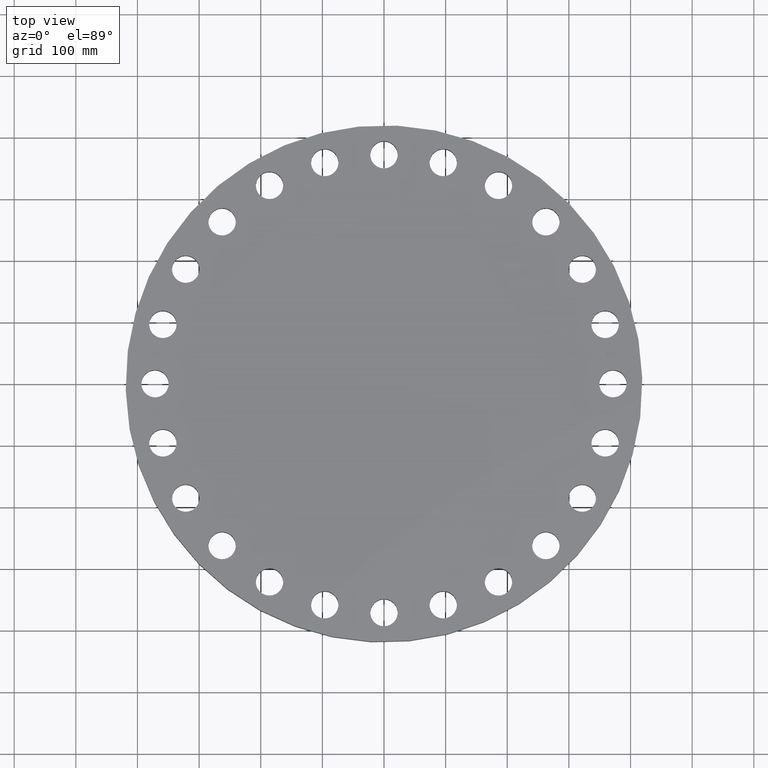
[diagram: clean part render]
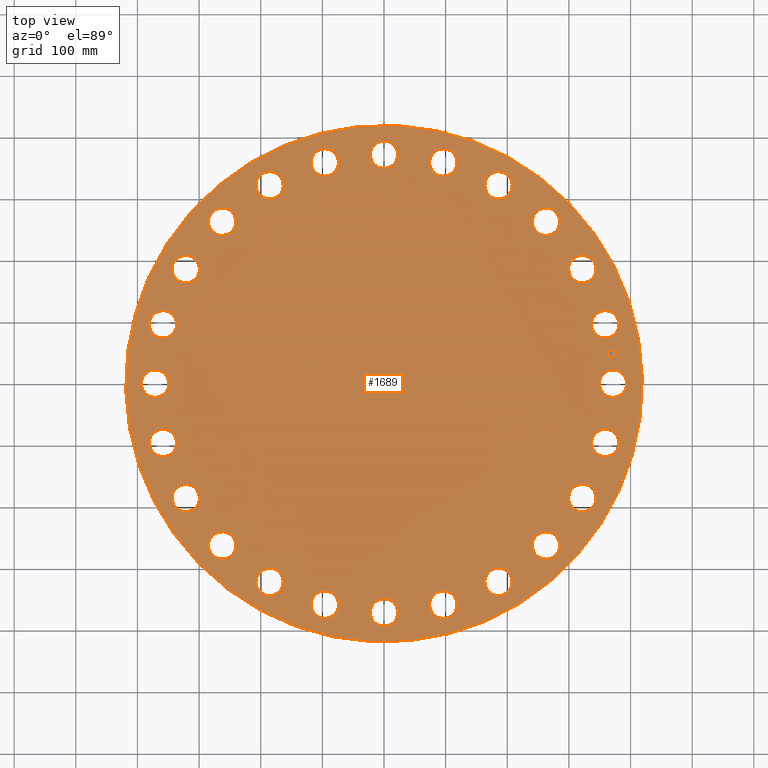
[diagram: same view with one face highlighted and labeled with its STEP entity id]
A machine part, top view. The second image highlights one B-rep face of the part: STEP entity #1689.
In plain terms, the highlighted planar face has unit normal (0, 0, -1).
Its self-contained STEP definition (entity closure, byte-faithful):
#65=AXIS2_PLACEMENT_3D('Circle Axis2P3D',#63,#64,$) ;
#82=AXIS2_PLACEMENT_3D('Circle Axis2P3D',#80,#81,$) ;
#115=AXIS2_PLACEMENT_3D('Circle Axis2P3D',#113,#114,$) ;
#139=AXIS2_PLACEMENT_3D('Circle Axis2P3D',#137,#138,$) ;
#598=AXIS2_PLACEMENT_3D('Circle Axis2P3D',#596,#597,$) ;
#610=AXIS2_PLACEMENT_3D('Circle Axis2P3D',#608,#609,$) ;
#641=AXIS2_PLACEMENT_3D('Circle Axis2P3D',#639,#640,$) ;
#653=AXIS2_PLACEMENT_3D('Circle Axis2P3D',#651,#652,$) ;
#684=AXIS2_PLACEMENT_3D('Circle Axis2P3D',#682,#683,$) ;
#696=AXIS2_PLACEMENT_3D('Circle Axis2P3D',#694,#695,$) ;
#727=AXIS2_PLACEMENT_3D('Circle Axis2P3D',#725,#726,$) ;
#739=AXIS2_PLACEMENT_3D('Circle Axis2P3D',#737,#738,$) ;
#770=AXIS2_PLACEMENT_3D('Circle Axis2P3D',#768,#769,$) ;
#782=AXIS2_PLACEMENT_3D('Circle Axis2P3D',#780,#781,$) ;
#813=AXIS2_PLACEMENT_3D('Circle Axis2P3D',#811,#812,$) ;
#825=AXIS2_PLACEMENT_3D('Circle Axis2P3D',#823,#824,$) ;
#856=AXIS2_PLACEMENT_3D('Circle Axis2P3D',#854,#855,$) ;
#868=AXIS2_PLACEMENT_3D('Circle Axis2P3D',#866,#867,$) ;
#899=AXIS2_PLACEMENT_3D('Circle Axis2P3D',#897,#898,$) ;
#911=AXIS2_PLACEMENT_3D('Circle Axis2P3D',#909,#910,$) ;
#942=AXIS2_PLACEMENT_3D('Circle Axis2P3D',#940,#941,$) ;
#954=AXIS2_PLACEMENT_3D('Circle Axis2P3D',#952,#953,$) ;
#985=AXIS2_PLACEMENT_3D('Circle Axis2P3D',#983,#984,$) ;
#997=AXIS2_PLACEMENT_3D('Circle Axis2P3D',#995,#996,$) ;
#1028=AXIS2_PLACEMENT_3D('Circle Axis2P3D',#1026,#1027,$) ;
#1040=AXIS2_PLACEMENT_3D('Circle Axis2P3D',#1038,#1039,$) ;
#1071=AXIS2_PLACEMENT_3D('Circle Axis2P3D',#1069,#1070,$) ;
#1083=AXIS2_PLACEMENT_3D('Circle Axis2P3D',#1081,#1082,$) ;
#1114=AXIS2_PLACEMENT_3D('Circle Axis2P3D',#1112,#1113,$) ;
#1126=AXIS2_PLACEMENT_3D('Circle Axis2P3D',#1124,#1125,$) ;
#1157=AXIS2_PLACEMENT_3D('Circle Axis2P3D',#1155,#1156,$) ;
#1169=AXIS2_PLACEMENT_3D('Circle Axis2P3D',#1167,#1168,$) ;
#1200=AXIS2_PLACEMENT_3D('Circle Axis2P3D',#1198,#1199,$) ;
#1212=AXIS2_PLACEMENT_3D('Circle Axis2P3D',#1210,#1211,$) ;
#1243=AXIS2_PLACEMENT_3D('Circle Axis2P3D',#1241,#1242,$) ;
#1255=AXIS2_PLACEMENT_3D('Circle Axis2P3D',#1253,#1254,$) ;
#1286=AXIS2_PLACEMENT_3D('Circle Axis2P3D',#1284,#1285,$) ;
#1298=AXIS2_PLACEMENT_3D('Circle Axis2P3D',#1296,#1297,$) ;
#1329=AXIS2_PLACEMENT_3D('Circle Axis2P3D',#1327,#1328,$) ;
#1341=AXIS2_PLACEMENT_3D('Circle Axis2P3D',#1339,#1340,$) ;
#1372=AXIS2_PLACEMENT_3D('Circle Axis2P3D',#1370,#1371,$) ;
#1384=AXIS2_PLACEMENT_3D('Circle Axis2P3D',#1382,#1383,$) ;
#1415=AXIS2_PLACEMENT_3D('Circle Axis2P3D',#1413,#1414,$) ;
#1427=AXIS2_PLACEMENT_3D('Circle Axis2P3D',#1425,#1426,$) ;
#1458=AXIS2_PLACEMENT_3D('Circle Axis2P3D',#1456,#1457,$) ;
#1470=AXIS2_PLACEMENT_3D('Circle Axis2P3D',#1468,#1469,$) ;
#1501=AXIS2_PLACEMENT_3D('Circle Axis2P3D',#1499,#1500,$) ;
#1513=AXIS2_PLACEMENT_3D('Circle Axis2P3D',#1511,#1512,$) ;
#1544=AXIS2_PLACEMENT_3D('Circle Axis2P3D',#1542,#1543,$) ;
#1556=AXIS2_PLACEMENT_3D('Circle Axis2P3D',#1554,#1555,$) ;
#1569=AXIS2_PLACEMENT_3D('Plane Axis2P3D',#1566,#1567,#1568) ;
#1673=AXIS2_PLACEMENT_3D('Circle Axis2P3D',#1671,#1672,$) ;
#1682=AXIS2_PLACEMENT_3D('Circle Axis2P3D',#1680,#1681,$) ;
#46=CARTESIAN_POINT('Vertex',(13.8571152584,0.41949734628,2.88000000001)) ;
#60=CARTESIAN_POINT('Vertex',(15.3928847417,-0.41949734628,2.88000000001)) ;
#63=CARTESIAN_POINT('Axis2P3D Location',(14.6250000001,0.,2.88000000001)) ;
#80=CARTESIAN_POINT('Axis2P3D Location',(14.6250000001,0.,2.88000000001)) ;
#110=CARTESIAN_POINT('Vertex',(7.910521387,14.4801122712,2.88000000001)) ;
#113=CARTESIAN_POINT('Axis2P3D Location',(0.,0.,2.88000000001)) ;
#117=CARTESIAN_POINT('Vertex',(-7.910521387,-14.4801122712,2.88000000001)) ;
#137=CARTESIAN_POINT('Axis2P3D Location',(0.,0.,2.88000000001)) ;
#586=CARTESIAN_POINT('Vertex',(-13.4935194085,3.18128201822,2.88000000001)) ;
#593=CARTESIAN_POINT('Vertex',(-14.7598110105,4.38917505106,2.88000000001)) ;
#596=CARTESIAN_POINT('Axis2P3D Location',(-14.1266652095,3.78522853464,2.88000000001)) ;
#608=CARTESIAN_POINT('Axis2P3D Location',(-14.1266652095,3.78522853464,2.88000000001)) ;
#629=CARTESIAN_POINT('Vertex',(12.2103625101,-6.5652622705,2.88000000001)) ;
#636=CARTESIAN_POINT('Vertex',(13.1208805507,-8.05973772956,2.88000000001)) ;
#639=CARTESIAN_POINT('Axis2P3D Location',(12.6656215304,-7.31250000003,2.88000000001)) ;
#651=CARTESIAN_POINT('Axis2P3D Location',(12.6656215304,-7.31250000003,2.88000000001)) ;
#672=CARTESIAN_POINT('Vertex',(-12.2103625101,6.5652622705,2.88000000001)) ;
#679=CARTESIAN_POINT('Vertex',(-13.1208805507,8.05973772956,2.88000000001)) ;
#682=CARTESIAN_POINT('Axis2P3D Location',(-12.6656215304,7.31250000003,2.88000000001)) ;
#694=CARTESIAN_POINT('Axis2P3D Location',(-12.6656215304,7.31250000003,2.88000000001)) ;
#715=CARTESIAN_POINT('Vertex',(10.0950895851,-9.50183074865,2.88000000001)) ;
#722=CARTESIAN_POINT('Vertex',(10.5877837646,-11.1810426011,2.88000000001)) ;
#725=CARTESIAN_POINT('Axis2P3D Location',(10.3414366749,-10.3414366749,2.88000000001)) ;
#737=CARTESIAN_POINT('Axis2P3D Location',(10.3414366749,-10.3414366749,2.88000000001)) ;
#758=CARTESIAN_POINT('Vertex',(-10.0950895851,9.50183074865,2.88000000001)) ;
#765=CARTESIAN_POINT('Vertex',(-10.5877837646,11.1810426011,2.88000000001)) ;
#768=CARTESIAN_POINT('Axis2P3D Location',(-10.3414366749,10.3414366749,2.88000000001)) ;
#780=CARTESIAN_POINT('Axis2P3D Location',(-10.3414366749,10.3414366749,2.88000000001)) ;
#801=CARTESIAN_POINT('Vertex',(7.2918529879,-11.7908651638,2.88000000001)) ;
#808=CARTESIAN_POINT('Vertex',(7.33314701216,-13.540377897,2.88000000001)) ;
#811=CARTESIAN_POINT('Axis2P3D Location',(7.31250000003,-12.6656215304,2.88000000001)) ;
#823=CARTESIAN_POINT('Axis2P3D Location',(7.31250000003,-12.6656215304,2.88000000001)) ;
#844=CARTESIAN_POINT('Vertex',(-7.2918529879,11.7908651638,2.88000000001)) ;
#851=CARTESIAN_POINT('Vertex',(-7.33314701216,13.540377897,2.88000000001)) ;
#854=CARTESIAN_POINT('Axis2P3D Location',(-7.31250000003,12.6656215304,2.88000000001)) ;
#866=CARTESIAN_POINT('Axis2P3D Location',(-7.31250000003,12.6656215304,2.88000000001)) ;
#887=CARTESIAN_POINT('Vertex',(3.99168865989,-13.2763716034,2.88000000001)) ;
#894=CARTESIAN_POINT('Vertex',(3.57876840939,-14.9769588157,2.88000000001)) ;
#897=CARTESIAN_POINT('Axis2P3D Location',(3.78522853464,-14.1266652095,2.88000000001)) ;
#909=CARTESIAN_POINT('Axis2P3D Location',(3.78522853464,-14.1266652095,2.88000000001)) ;
#930=CARTESIAN_POINT('Vertex',(-3.99168865989,13.2763716034,2.88000000001)) ;
#937=CARTESIAN_POINT('Vertex',(-3.57876840939,14.9769588157,2.88000000001)) ;
#940=CARTESIAN_POINT('Axis2P3D Location',(-3.78522853464,14.1266652095,2.88000000001)) ;
#952=CARTESIAN_POINT('Axis2P3D Location',(-3.78522853464,14.1266652095,2.88000000001)) ;
#973=CARTESIAN_POINT('Vertex',(0.41949734628,-13.8571152584,2.88000000001)) ;
#980=CARTESIAN_POINT('Vertex',(-0.41949734628,-15.3928847417,2.88000000001)) ;
#983=CARTESIAN_POINT('Axis2P3D Location',(-1.34240690453E-015,-14.6250000001,2.88000000001)) ;
#995=CARTESIAN_POINT('Axis2P3D Location',(-1.34240690453E-015,-14.6250000001,2.88000000001)) ;
#1016=CARTESIAN_POINT('Vertex',(-0.41949734628,13.8571152584,2.88000000001)) ;
#1023=CARTESIAN_POINT('Vertex',(0.41949734628,15.3928847417,2.88000000001)) ;
#1026=CARTESIAN_POINT('Axis2P3D Location',(-2.68656891564E-015,14.6250000001,2.88000000001)) ;
#1038=CARTESIAN_POINT('Axis2P3D Location',(-2.68656891564E-015,14.6250000001,2.88000000001)) ;
#1059=CARTESIAN_POINT('Vertex',(-3.18128201822,-13.4935194085,2.88000000001)) ;
#1066=CARTESIAN_POINT('Vertex',(-4.38917505106,-14.7598110105,2.88000000001)) ;
#1069=CARTESIAN_POINT('Axis2P3D Location',(-3.78522853464,-14.1266652095,2.88000000001)) ;
#1081=CARTESIAN_POINT('Axis2P3D Location',(-3.78522853464,-14.1266652095,2.88000000001)) ;
#1102=CARTESIAN_POINT('Vertex',(3.18128201822,13.4935194085,2.88000000001)) ;
#1109=CARTESIAN_POINT('Vertex',(4.38917505106,14.7598110105,2.88000000001)) ;
#1112=CARTESIAN_POINT('Axis2P3D Location',(3.78522853464,14.1266652095,2.88000000001)) ;
#1124=CARTESIAN_POINT('Axis2P3D Location',(3.78522853464,14.1266652095,2.88000000001)) ;
#1145=CARTESIAN_POINT('Vertex',(-6.5652622705,-12.2103625101,2.88000000001)) ;
#1152=CARTESIAN_POINT('Vertex',(-8.05973772956,-13.1208805507,2.88000000001)) ;
#1155=CARTESIAN_POINT('Axis2P3D Location',(-7.31250000003,-12.6656215304,2.88000000001)) ;
#1167=CARTESIAN_POINT('Axis2P3D Location',(-7.31250000003,-12.6656215304,2.88000000001)) ;
#1188=CARTESIAN_POINT('Vertex',(6.5652622705,12.2103625101,2.88000000001)) ;
#1195=CARTESIAN_POINT('Vertex',(8.05973772956,13.1208805507,2.88000000001)) ;
#1198=CARTESIAN_POINT('Axis2P3D Location',(7.31250000003,12.6656215304,2.88000000001)) ;
#1210=CARTESIAN_POINT('Axis2P3D Location',(7.31250000003,12.6656215304,2.88000000001)) ;
#1231=CARTESIAN_POINT('Vertex',(-9.50183074865,-10.0950895851,2.88000000001)) ;
#1238=CARTESIAN_POINT('Vertex',(-11.1810426011,-10.5877837646,2.88000000001)) ;
#1241=CARTESIAN_POINT('Axis2P3D Location',(-10.3414366749,-10.3414366749,2.88000000001)) ;
#1253=CARTESIAN_POINT('Axis2P3D Location',(-10.3414366749,-10.3414366749,2.88000000001)) ;
#1274=CARTESIAN_POINT('Vertex',(9.50183074865,10.0950895851,2.88000000001)) ;
#1281=CARTESIAN_POINT('Vertex',(11.1810426011,10.5877837646,2.88000000001)) ;
#1284=CARTESIAN_POINT('Axis2P3D Location',(10.3414366749,10.3414366749,2.88000000001)) ;
#1296=CARTESIAN_POINT('Axis2P3D Location',(10.3414366749,10.3414366749,2.88000000001)) ;
#1317=CARTESIAN_POINT('Vertex',(-11.7908651638,-7.2918529879,2.88000000001)) ;
#1324=CARTESIAN_POINT('Vertex',(-13.540377897,-7.33314701216,2.88000000001)) ;
#1327=CARTESIAN_POINT('Axis2P3D Location',(-12.6656215304,-7.31250000003,2.88000000001)) ;
#1339=CARTESIAN_POINT('Axis2P3D Location',(-12.6656215304,-7.31250000003,2.88000000001)) ;
#1360=CARTESIAN_POINT('Vertex',(11.7908651638,7.2918529879,2.88000000001)) ;
#1367=CARTESIAN_POINT('Vertex',(13.540377897,7.33314701216,2.88000000001)) ;
#1370=CARTESIAN_POINT('Axis2P3D Location',(12.6656215304,7.31250000003,2.88000000001)) ;
#1382=CARTESIAN_POINT('Axis2P3D Location',(12.6656215304,7.31250000003,2.88000000001)) ;
#1403=CARTESIAN_POINT('Vertex',(-13.2763716034,-3.99168865989,2.88000000001)) ;
#1410=CARTESIAN_POINT('Vertex',(-14.9769588157,-3.57876840939,2.88000000001)) ;
#1413=CARTESIAN_POINT('Axis2P3D Location',(-14.1266652095,-3.78522853464,2.88000000001)) ;
#1425=CARTESIAN_POINT('Axis2P3D Location',(-14.1266652095,-3.78522853464,2.88000000001)) ;
#1446=CARTESIAN_POINT('Vertex',(13.2763716034,3.99168865989,2.88000000001)) ;
#1453=CARTESIAN_POINT('Vertex',(14.9769588157,3.57876840939,2.88000000001)) ;
#1456=CARTESIAN_POINT('Axis2P3D Location',(14.1266652095,3.78522853464,2.88000000001)) ;
#1468=CARTESIAN_POINT('Axis2P3D Location',(14.1266652095,3.78522853464,2.88000000001)) ;
#1489=CARTESIAN_POINT('Vertex',(-13.8571152584,-0.41949734628,2.88000000001)) ;
#1496=CARTESIAN_POINT('Vertex',(-15.3928847417,0.41949734628,2.88000000001)) ;
#1499=CARTESIAN_POINT('Axis2P3D Location',(-14.6250000001,-1.79104594376E-015,2.88000000001)) ;
#1511=CARTESIAN_POINT('Axis2P3D Location',(-14.6250000001,-1.79104594376E-015,2.88000000001)) ;
#1532=CARTESIAN_POINT('Vertex',(13.4935194085,-3.18128201822,2.88000000001)) ;
#1539=CARTESIAN_POINT('Vertex',(14.7598110105,-4.38917505106,2.88000000001)) ;
#1542=CARTESIAN_POINT('Axis2P3D Location',(14.1266652095,-3.78522853464,2.88000000001)) ;
#1554=CARTESIAN_POINT('Axis2P3D Location',(14.1266652095,-3.78522853464,2.88000000001)) ;
#1566=CARTESIAN_POINT('Axis2P3D Location',(0.,16.5000000001,2.88000000001)) ;
#1671=CARTESIAN_POINT('Axis2P3D Location',(14.4998810976,1.90894556123,2.88000000001)) ;
#1675=CARTESIAN_POINT('Vertex',(14.4675758651,2.15432816442,2.88000000001)) ;
#1677=CARTESIAN_POINT('Vertex',(14.5321863302,1.66356295803,2.88000000001)) ;
#1680=CARTESIAN_POINT('Axis2P3D Location',(14.4998810976,1.90894556123,2.88000000001)) ;
#64=DIRECTION('Axis2P3D Direction',(0.,-0.,-0.0393700787402)) ;
#81=DIRECTION('Axis2P3D Direction',(0.,-0.,-0.0393700787402)) ;
#114=DIRECTION('Axis2P3D Direction',(0.,0.,-0.0393700787402)) ;
#138=DIRECTION('Axis2P3D Direction',(0.,0.,-0.0393700787402)) ;
#597=DIRECTION('Axis2P3D Direction',(0.,0.,-0.0393700787402)) ;
#609=DIRECTION('Axis2P3D Direction',(0.,0.,-0.0393700787402)) ;
#640=DIRECTION('Axis2P3D Direction',(0.,-0.,-0.0393700787402)) ;
#652=DIRECTION('Axis2P3D Direction',(0.,-0.,-0.0393700787402)) ;
#683=DIRECTION('Axis2P3D Direction',(0.,0.,-0.0393700787402)) ;
#695=DIRECTION('Axis2P3D Direction',(0.,0.,-0.0393700787402)) ;
#726=DIRECTION('Axis2P3D Direction',(0.,-0.,-0.0393700787402)) ;
#738=DIRECTION('Axis2P3D Direction',(0.,-0.,-0.0393700787402)) ;
#769=DIRECTION('Axis2P3D Direction',(0.,0.,-0.0393700787402)) ;
#781=DIRECTION('Axis2P3D Direction',(0.,0.,-0.0393700787402)) ;
#812=DIRECTION('Axis2P3D Direction',(0.,-0.,-0.0393700787402)) ;
#824=DIRECTION('Axis2P3D Direction',(0.,-0.,-0.0393700787402)) ;
#855=DIRECTION('Axis2P3D Direction',(0.,0.,-0.0393700787402)) ;
#867=DIRECTION('Axis2P3D Direction',(0.,0.,-0.0393700787402)) ;
#898=DIRECTION('Axis2P3D Direction',(0.,-0.,-0.0393700787402)) ;
#910=DIRECTION('Axis2P3D Direction',(0.,-0.,-0.0393700787402)) ;
#941=DIRECTION('Axis2P3D Direction',(0.,0.,-0.0393700787402)) ;
#953=DIRECTION('Axis2P3D Direction',(0.,0.,-0.0393700787402)) ;
#984=DIRECTION('Axis2P3D Direction',(0.,-0.,-0.0393700787402)) ;
#996=DIRECTION('Axis2P3D Direction',(0.,-0.,-0.0393700787402)) ;
#1027=DIRECTION('Axis2P3D Direction',(0.,0.,-0.0393700787402)) ;
#1039=DIRECTION('Axis2P3D Direction',(0.,0.,-0.0393700787402)) ;
#1070=DIRECTION('Axis2P3D Direction',(-0.,0.,-0.0393700787402)) ;
#1082=DIRECTION('Axis2P3D Direction',(-0.,0.,-0.0393700787402)) ;
#1113=DIRECTION('Axis2P3D Direction',(0.,0.,-0.0393700787402)) ;
#1125=DIRECTION('Axis2P3D Direction',(0.,0.,-0.0393700787402)) ;
#1156=DIRECTION('Axis2P3D Direction',(-0.,0.,-0.0393700787402)) ;
#1168=DIRECTION('Axis2P3D Direction',(-0.,0.,-0.0393700787402)) ;
#1199=DIRECTION('Axis2P3D Direction',(0.,0.,-0.0393700787402)) ;
#1211=DIRECTION('Axis2P3D Direction',(0.,0.,-0.0393700787402)) ;
#1242=DIRECTION('Axis2P3D Direction',(-0.,0.,-0.0393700787402)) ;
#1254=DIRECTION('Axis2P3D Direction',(-0.,0.,-0.0393700787402)) ;
#1285=DIRECTION('Axis2P3D Direction',(0.,0.,-0.0393700787402)) ;
#1297=DIRECTION('Axis2P3D Direction',(0.,0.,-0.0393700787402)) ;
#1328=DIRECTION('Axis2P3D Direction',(-0.,0.,-0.0393700787402)) ;
#1340=DIRECTION('Axis2P3D Direction',(-0.,0.,-0.0393700787402)) ;
#1371=DIRECTION('Axis2P3D Direction',(0.,0.,-0.0393700787402)) ;
#1383=DIRECTION('Axis2P3D Direction',(0.,0.,-0.0393700787402)) ;
#1414=DIRECTION('Axis2P3D Direction',(-0.,0.,-0.0393700787402)) ;
#1426=DIRECTION('Axis2P3D Direction',(-0.,0.,-0.0393700787402)) ;
#1457=DIRECTION('Axis2P3D Direction',(0.,0.,-0.0393700787402)) ;
#1469=DIRECTION('Axis2P3D Direction',(0.,0.,-0.0393700787402)) ;
#1500=DIRECTION('Axis2P3D Direction',(-0.,0.,-0.0393700787402)) ;
#1512=DIRECTION('Axis2P3D Direction',(-0.,0.,-0.0393700787402)) ;
#1543=DIRECTION('Axis2P3D Direction',(0.,-0.,-0.0393700787402)) ;
#1555=DIRECTION('Axis2P3D Direction',(0.,-0.,-0.0393700787402)) ;
#1567=DIRECTION('Axis2P3D Direction',(0.,0.,-0.0393700787402)) ;
#1568=DIRECTION('Axis2P3D XDirection',(0.0393700787402,0.,0.)) ;
#1672=DIRECTION('Axis2P3D Direction',(0.,0.,-0.0393700787402)) ;
#1681=DIRECTION('Axis2P3D Direction',(0.,0.,-0.0393700787402)) ;
#1572=ORIENTED_EDGE('',*,*,#119,.F.) ;
#1573=ORIENTED_EDGE('',*,*,#141,.F.) ;
#1576=ORIENTED_EDGE('',*,*,#67,.T.) ;
#1577=ORIENTED_EDGE('',*,*,#84,.T.) ;
#1580=ORIENTED_EDGE('',*,*,#1558,.T.) ;
#1581=ORIENTED_EDGE('',*,*,#1546,.T.) ;
#1584=ORIENTED_EDGE('',*,*,#655,.T.) ;
#1585=ORIENTED_EDGE('',*,*,#643,.T.) ;
#1588=ORIENTED_EDGE('',*,*,#741,.T.) ;
#1589=ORIENTED_EDGE('',*,*,#729,.T.) ;
#1592=ORIENTED_EDGE('',*,*,#827,.T.) ;
#1593=ORIENTED_EDGE('',*,*,#815,.T.) ;
#1596=ORIENTED_EDGE('',*,*,#913,.T.) ;
#1597=ORIENTED_EDGE('',*,*,#901,.T.) ;
#1600=ORIENTED_EDGE('',*,*,#999,.T.) ;
#1601=ORIENTED_EDGE('',*,*,#987,.T.) ;
#1604=ORIENTED_EDGE('',*,*,#1085,.T.) ;
#1605=ORIENTED_EDGE('',*,*,#1073,.T.) ;
#1608=ORIENTED_EDGE('',*,*,#1171,.T.) ;
#1609=ORIENTED_EDGE('',*,*,#1159,.T.) ;
#1612=ORIENTED_EDGE('',*,*,#1257,.T.) ;
#1613=ORIENTED_EDGE('',*,*,#1245,.T.) ;
#1616=ORIENTED_EDGE('',*,*,#1343,.T.) ;
#1617=ORIENTED_EDGE('',*,*,#1331,.T.) ;
#1620=ORIENTED_EDGE('',*,*,#1429,.T.) ;
#1621=ORIENTED_EDGE('',*,*,#1417,.T.) ;
#1624=ORIENTED_EDGE('',*,*,#1515,.T.) ;
#1625=ORIENTED_EDGE('',*,*,#1503,.T.) ;
#1628=ORIENTED_EDGE('',*,*,#612,.T.) ;
#1629=ORIENTED_EDGE('',*,*,#600,.T.) ;
#1632=ORIENTED_EDGE('',*,*,#698,.T.) ;
#1633=ORIENTED_EDGE('',*,*,#686,.T.) ;
#1636=ORIENTED_EDGE('',*,*,#784,.T.) ;
#1637=ORIENTED_EDGE('',*,*,#772,.T.) ;
#1640=ORIENTED_EDGE('',*,*,#870,.T.) ;
#1641=ORIENTED_EDGE('',*,*,#858,.T.) ;
#1644=ORIENTED_EDGE('',*,*,#956,.T.) ;
#1645=ORIENTED_EDGE('',*,*,#944,.T.) ;
#1648=ORIENTED_EDGE('',*,*,#1042,.T.) ;
#1649=ORIENTED_EDGE('',*,*,#1030,.T.) ;
#1652=ORIENTED_EDGE('',*,*,#1128,.T.) ;
#1653=ORIENTED_EDGE('',*,*,#1116,.T.) ;
#1656=ORIENTED_EDGE('',*,*,#1214,.T.) ;
#1657=ORIENTED_EDGE('',*,*,#1202,.T.) ;
#1660=ORIENTED_EDGE('',*,*,#1300,.T.) ;
#1661=ORIENTED_EDGE('',*,*,#1288,.T.) ;
#1664=ORIENTED_EDGE('',*,*,#1386,.T.) ;
#1665=ORIENTED_EDGE('',*,*,#1374,.T.) ;
#1668=ORIENTED_EDGE('',*,*,#1472,.T.) ;
#1669=ORIENTED_EDGE('',*,*,#1460,.T.) ;
#1686=ORIENTED_EDGE('',*,*,#1679,.T.) ;
#1687=ORIENTED_EDGE('',*,*,#1684,.T.) ;
#1578=FACE_BOUND('',#1575,.T.) ;
#1582=FACE_BOUND('',#1579,.T.) ;
#1586=FACE_BOUND('',#1583,.T.) ;
#1590=FACE_BOUND('',#1587,.T.) ;
#1594=FACE_BOUND('',#1591,.T.) ;
#1598=FACE_BOUND('',#1595,.T.) ;
#1602=FACE_BOUND('',#1599,.T.) ;
#1606=FACE_BOUND('',#1603,.T.) ;
#1610=FACE_BOUND('',#1607,.T.) ;
#1614=FACE_BOUND('',#1611,.T.) ;
#1618=FACE_BOUND('',#1615,.T.) ;
#1622=FACE_BOUND('',#1619,.T.) ;
#1626=FACE_BOUND('',#1623,.T.) ;
#1630=FACE_BOUND('',#1627,.T.) ;
#1634=FACE_BOUND('',#1631,.T.) ;
#1638=FACE_BOUND('',#1635,.T.) ;
#1642=FACE_BOUND('',#1639,.T.) ;
#1646=FACE_BOUND('',#1643,.T.) ;
#1650=FACE_BOUND('',#1647,.T.) ;
#1654=FACE_BOUND('',#1651,.T.) ;
#1658=FACE_BOUND('',#1655,.T.) ;
#1662=FACE_BOUND('',#1659,.T.) ;
#1666=FACE_BOUND('',#1663,.T.) ;
#1670=FACE_BOUND('',#1667,.T.) ;
#1688=FACE_BOUND('',#1685,.T.) ;
#1689=ADVANCED_FACE('PartBody',(#1574,#1578,#1582,#1586,#1590,#1594,#1598,#1602,#1606,#1610,#1614,#1618,#1622,#1626,#1630,#1634,#1638,#1642,#1646,#1650,#1654,#1658,#1662,#1666,#1670,#1688),#1570,.F.) ;
#66=CIRCLE('generated circle',#65,0.875000000004) ;
#83=CIRCLE('generated circle',#82,0.875000000004) ;
#116=CIRCLE('generated circle',#115,16.5000000001) ;
#140=CIRCLE('generated circle',#139,16.5000000001) ;
#599=CIRCLE('generated circle',#598,0.875000000004) ;
#611=CIRCLE('generated circle',#610,0.875000000004) ;
#642=CIRCLE('generated circle',#641,0.875000000003) ;
#654=CIRCLE('generated circle',#653,0.875000000003) ;
#685=CIRCLE('generated circle',#684,0.875000000003) ;
#697=CIRCLE('generated circle',#696,0.875000000003) ;
#728=CIRCLE('generated circle',#727,0.875000000004) ;
#740=CIRCLE('generated circle',#739,0.875000000004) ;
#771=CIRCLE('generated circle',#770,0.875000000004) ;
#783=CIRCLE('generated circle',#782,0.875000000004) ;
#814=CIRCLE('generated circle',#813,0.875000000003) ;
#826=CIRCLE('generated circle',#825,0.875000000003) ;
#857=CIRCLE('generated circle',#856,0.875000000003) ;
#869=CIRCLE('generated circle',#868,0.875000000003) ;
#900=CIRCLE('generated circle',#899,0.875000000004) ;
#912=CIRCLE('generated circle',#911,0.875000000004) ;
#943=CIRCLE('generated circle',#942,0.875000000004) ;
#955=CIRCLE('generated circle',#954,0.875000000004) ;
#986=CIRCLE('generated circle',#985,0.875000000004) ;
#998=CIRCLE('generated circle',#997,0.875000000004) ;
#1029=CIRCLE('generated circle',#1028,0.875000000004) ;
#1041=CIRCLE('generated circle',#1040,0.875000000004) ;
#1072=CIRCLE('generated circle',#1071,0.875000000004) ;
#1084=CIRCLE('generated circle',#1083,0.875000000004) ;
#1115=CIRCLE('generated circle',#1114,0.875000000004) ;
#1127=CIRCLE('generated circle',#1126,0.875000000004) ;
#1158=CIRCLE('generated circle',#1157,0.875000000003) ;
#1170=CIRCLE('generated circle',#1169,0.875000000003) ;
#1201=CIRCLE('generated circle',#1200,0.875000000003) ;
#1213=CIRCLE('generated circle',#1212,0.875000000003) ;
#1244=CIRCLE('generated circle',#1243,0.875000000004) ;
#1256=CIRCLE('generated circle',#1255,0.875000000004) ;
#1287=CIRCLE('generated circle',#1286,0.875000000004) ;
#1299=CIRCLE('generated circle',#1298,0.875000000004) ;
#1330=CIRCLE('generated circle',#1329,0.875000000003) ;
#1342=CIRCLE('generated circle',#1341,0.875000000003) ;
#1373=CIRCLE('generated circle',#1372,0.875000000003) ;
#1385=CIRCLE('generated circle',#1384,0.875000000003) ;
#1416=CIRCLE('generated circle',#1415,0.875000000004) ;
#1428=CIRCLE('generated circle',#1427,0.875000000004) ;
#1459=CIRCLE('generated circle',#1458,0.875000000004) ;
#1471=CIRCLE('generated circle',#1470,0.875000000004) ;
#1502=CIRCLE('generated circle',#1501,0.875000000004) ;
#1514=CIRCLE('generated circle',#1513,0.875000000004) ;
#1545=CIRCLE('generated circle',#1544,0.875000000004) ;
#1557=CIRCLE('generated circle',#1556,0.875000000004) ;
#1674=CIRCLE('generated circle',#1673,0.247500000001) ;
#1683=CIRCLE('generated circle',#1682,0.247500000001) ;
#67=EDGE_CURVE('',#47,#61,#66,.T.) ;
#84=EDGE_CURVE('',#61,#47,#83,.T.) ;
#119=EDGE_CURVE('',#111,#118,#116,.T.) ;
#141=EDGE_CURVE('',#118,#111,#140,.T.) ;
#600=EDGE_CURVE('',#587,#594,#599,.T.) ;
#612=EDGE_CURVE('',#594,#587,#611,.T.) ;
#643=EDGE_CURVE('',#630,#637,#642,.T.) ;
#655=EDGE_CURVE('',#637,#630,#654,.T.) ;
#686=EDGE_CURVE('',#673,#680,#685,.T.) ;
#698=EDGE_CURVE('',#680,#673,#697,.T.) ;
#729=EDGE_CURVE('',#716,#723,#728,.T.) ;
#741=EDGE_CURVE('',#723,#716,#740,.T.) ;
#772=EDGE_CURVE('',#759,#766,#771,.T.) ;
#784=EDGE_CURVE('',#766,#759,#783,.T.) ;
#815=EDGE_CURVE('',#802,#809,#814,.T.) ;
#827=EDGE_CURVE('',#809,#802,#826,.T.) ;
#858=EDGE_CURVE('',#845,#852,#857,.T.) ;
#870=EDGE_CURVE('',#852,#845,#869,.T.) ;
#901=EDGE_CURVE('',#888,#895,#900,.T.) ;
#913=EDGE_CURVE('',#895,#888,#912,.T.) ;
#944=EDGE_CURVE('',#931,#938,#943,.T.) ;
#956=EDGE_CURVE('',#938,#931,#955,.T.) ;
#987=EDGE_CURVE('',#974,#981,#986,.T.) ;
#999=EDGE_CURVE('',#981,#974,#998,.T.) ;
#1030=EDGE_CURVE('',#1017,#1024,#1029,.T.) ;
#1042=EDGE_CURVE('',#1024,#1017,#1041,.T.) ;
#1073=EDGE_CURVE('',#1060,#1067,#1072,.T.) ;
#1085=EDGE_CURVE('',#1067,#1060,#1084,.T.) ;
#1116=EDGE_CURVE('',#1103,#1110,#1115,.T.) ;
#1128=EDGE_CURVE('',#1110,#1103,#1127,.T.) ;
#1159=EDGE_CURVE('',#1146,#1153,#1158,.T.) ;
#1171=EDGE_CURVE('',#1153,#1146,#1170,.T.) ;
#1202=EDGE_CURVE('',#1189,#1196,#1201,.T.) ;
#1214=EDGE_CURVE('',#1196,#1189,#1213,.T.) ;
#1245=EDGE_CURVE('',#1232,#1239,#1244,.T.) ;
#1257=EDGE_CURVE('',#1239,#1232,#1256,.T.) ;
#1288=EDGE_CURVE('',#1275,#1282,#1287,.T.) ;
#1300=EDGE_CURVE('',#1282,#1275,#1299,.T.) ;
#1331=EDGE_CURVE('',#1318,#1325,#1330,.T.) ;
#1343=EDGE_CURVE('',#1325,#1318,#1342,.T.) ;
#1374=EDGE_CURVE('',#1361,#1368,#1373,.T.) ;
#1386=EDGE_CURVE('',#1368,#1361,#1385,.T.) ;
#1417=EDGE_CURVE('',#1404,#1411,#1416,.T.) ;
#1429=EDGE_CURVE('',#1411,#1404,#1428,.T.) ;
#1460=EDGE_CURVE('',#1447,#1454,#1459,.T.) ;
#1472=EDGE_CURVE('',#1454,#1447,#1471,.T.) ;
#1503=EDGE_CURVE('',#1490,#1497,#1502,.T.) ;
#1515=EDGE_CURVE('',#1497,#1490,#1514,.T.) ;
#1546=EDGE_CURVE('',#1533,#1540,#1545,.T.) ;
#1558=EDGE_CURVE('',#1540,#1533,#1557,.T.) ;
#1679=EDGE_CURVE('',#1676,#1678,#1674,.T.) ;
#1684=EDGE_CURVE('',#1678,#1676,#1683,.T.) ;
#1571=EDGE_LOOP('',(#1572,#1573)) ;
#1575=EDGE_LOOP('',(#1576,#1577)) ;
#1579=EDGE_LOOP('',(#1580,#1581)) ;
#1583=EDGE_LOOP('',(#1584,#1585)) ;
#1587=EDGE_LOOP('',(#1588,#1589)) ;
#1591=EDGE_LOOP('',(#1592,#1593)) ;
#1595=EDGE_LOOP('',(#1596,#1597)) ;
#1599=EDGE_LOOP('',(#1600,#1601)) ;
#1603=EDGE_LOOP('',(#1604,#1605)) ;
#1607=EDGE_LOOP('',(#1608,#1609)) ;
#1611=EDGE_LOOP('',(#1612,#1613)) ;
#1615=EDGE_LOOP('',(#1616,#1617)) ;
#1619=EDGE_LOOP('',(#1620,#1621)) ;
#1623=EDGE_LOOP('',(#1624,#1625)) ;
#1627=EDGE_LOOP('',(#1628,#1629)) ;
#1631=EDGE_LOOP('',(#1632,#1633)) ;
#1635=EDGE_LOOP('',(#1636,#1637)) ;
#1639=EDGE_LOOP('',(#1640,#1641)) ;
#1643=EDGE_LOOP('',(#1644,#1645)) ;
#1647=EDGE_LOOP('',(#1648,#1649)) ;
#1651=EDGE_LOOP('',(#1652,#1653)) ;
#1655=EDGE_LOOP('',(#1656,#1657)) ;
#1659=EDGE_LOOP('',(#1660,#1661)) ;
#1663=EDGE_LOOP('',(#1664,#1665)) ;
#1667=EDGE_LOOP('',(#1668,#1669)) ;
#1685=EDGE_LOOP('',(#1686,#1687)) ;
#1574=FACE_OUTER_BOUND('',#1571,.T.) ;
#1570=PLANE('',#1569) ;
#47=VERTEX_POINT('',#46) ;
#61=VERTEX_POINT('',#60) ;
#111=VERTEX_POINT('',#110) ;
#118=VERTEX_POINT('',#117) ;
#587=VERTEX_POINT('',#586) ;
#594=VERTEX_POINT('',#593) ;
#630=VERTEX_POINT('',#629) ;
#637=VERTEX_POINT('',#636) ;
#673=VERTEX_POINT('',#672) ;
#680=VERTEX_POINT('',#679) ;
#716=VERTEX_POINT('',#715) ;
#723=VERTEX_POINT('',#722) ;
#759=VERTEX_POINT('',#758) ;
#766=VERTEX_POINT('',#765) ;
#802=VERTEX_POINT('',#801) ;
#809=VERTEX_POINT('',#808) ;
#845=VERTEX_POINT('',#844) ;
#852=VERTEX_POINT('',#851) ;
#888=VERTEX_POINT('',#887) ;
#895=VERTEX_POINT('',#894) ;
#931=VERTEX_POINT('',#930) ;
#938=VERTEX_POINT('',#937) ;
#974=VERTEX_POINT('',#973) ;
#981=VERTEX_POINT('',#980) ;
#1017=VERTEX_POINT('',#1016) ;
#1024=VERTEX_POINT('',#1023) ;
#1060=VERTEX_POINT('',#1059) ;
#1067=VERTEX_POINT('',#1066) ;
#1103=VERTEX_POINT('',#1102) ;
#1110=VERTEX_POINT('',#1109) ;
#1146=VERTEX_POINT('',#1145) ;
#1153=VERTEX_POINT('',#1152) ;
#1189=VERTEX_POINT('',#1188) ;
#1196=VERTEX_POINT('',#1195) ;
#1232=VERTEX_POINT('',#1231) ;
#1239=VERTEX_POINT('',#1238) ;
#1275=VERTEX_POINT('',#1274) ;
#1282=VERTEX_POINT('',#1281) ;
#1318=VERTEX_POINT('',#1317) ;
#1325=VERTEX_POINT('',#1324) ;
#1361=VERTEX_POINT('',#1360) ;
#1368=VERTEX_POINT('',#1367) ;
#1404=VERTEX_POINT('',#1403) ;
#1411=VERTEX_POINT('',#1410) ;
#1447=VERTEX_POINT('',#1446) ;
#1454=VERTEX_POINT('',#1453) ;
#1490=VERTEX_POINT('',#1489) ;
#1497=VERTEX_POINT('',#1496) ;
#1533=VERTEX_POINT('',#1532) ;
#1540=VERTEX_POINT('',#1539) ;
#1676=VERTEX_POINT('',#1675) ;
#1678=VERTEX_POINT('',#1677) ;